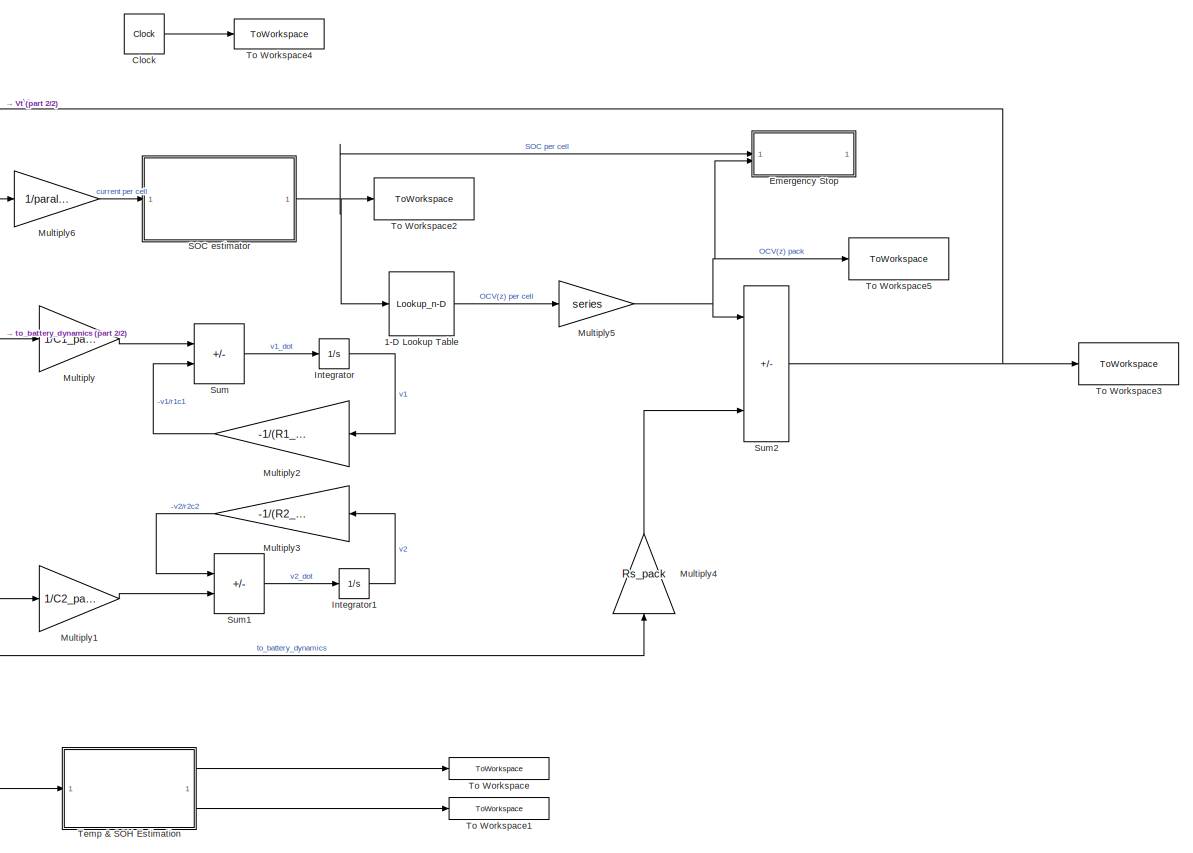
[diagram: root canvas - part 1/2, right side, full height]
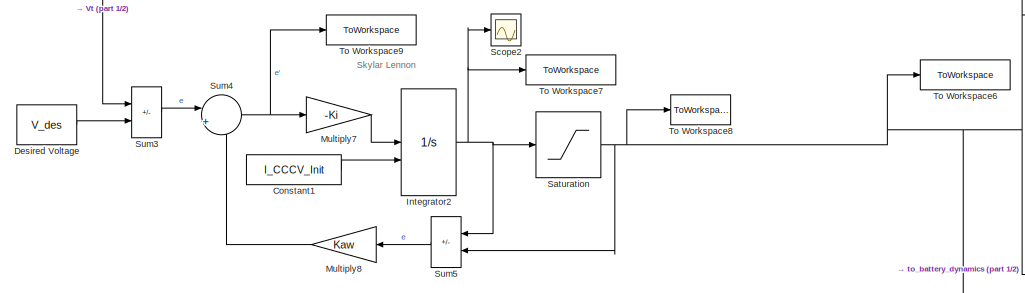
[diagram: root canvas - part 2/2, middle left region]
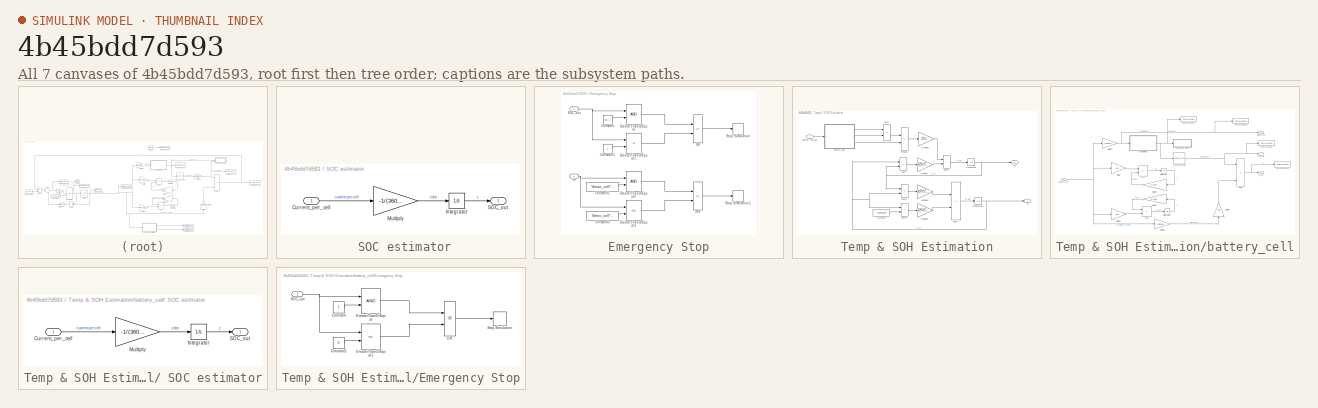
[diagram: thumbnail index - all 7 canvases of the model, root first then tree order]
MODEL slx_4b45bdd7d593
KIND model
CONFIG AbsTol = auto
CONFIG EnableMultiTasking = off
CONFIG FixedStep = auto
CONFIG MaxStep = auto
CONFIG MinStep = auto
CONFIG RelTol = 1e-3
CONFIG SampleTimeConstraint = Unconstrained
CONFIG SolverName = VariableStepAuto
CONFIG StartTime = 0.0
CONFIG StopTime = total_time
BLOCK [SubSystem]  SOC estimator
BLOCK [Inport]  SOC estimator/Current_per_cell
BLOCK [Integrator]  SOC estimator/Integrator
  InitialCondition = SOC_i
BLOCK [Gain]  SOC estimator/Multiply
  Gain = -1/(3600*Qcell)
BLOCK [Outport]  SOC estimator/SOC_out
  VectorParamsAs1DForOutWhenUnconnected = off
BLOCK [Lookup_n-D] 1-D Lookup Table
  BreakpointsForDimension1 = SOC
  InputPortMap = u0
  InternalRulePriority = Speed
  NumberOfTableDimensions = 1
  RndMeth = Simplest
  Table = Vocv
BLOCK [Clock] Clock
BLOCK [Constant] Constant1
  Value = I_CCCV_Init
BLOCK [Constant] Desired Voltage
  Value = V_des
BLOCK [SubSystem] Emergency Stop
BLOCK [Constant] Emergency Stop/Constant
  Value = SOC_f
BLOCK [Constant] Emergency Stop/Constant1
  Value = 0
BLOCK [Constant] Emergency Stop/Constant2
  Value = Vtmax_cell*series
BLOCK [Constant] Emergency Stop/Constant3
  Value = Vtmin_cell*series
BLOCK [RelationalOperator] Emergency Stop/GreaterThanOrEqual
  InputSameDT = off
  OutDataTypeStr = boolean
  RndMeth = Simplest
BLOCK [RelationalOperator] Emergency Stop/GreaterThanOrEqual1
  InputSameDT = off
  Operator = <
  OutDataTypeStr = boolean
  RndMeth = Simplest
BLOCK [RelationalOperator] Emergency Stop/GreaterThanOrEqual2
  InputSameDT = off
  OutDataTypeStr = boolean
  RndMeth = Simplest
BLOCK [RelationalOperator] Emergency Stop/GreaterThanOrEqual3
  InputSameDT = off
  Operator = <=
  OutDataTypeStr = boolean
  RndMeth = Simplest
BLOCK [Logic] Emergency Stop/OR
  AllPortsSameDT = off
  IconShape = distinctive
  Operator = OR
  OutDataTypeStr = boolean
BLOCK [Logic] Emergency Stop/OR1
  AllPortsSameDT = off
  IconShape = distinctive
  Operator = OR
  OutDataTypeStr = boolean
BLOCK [Inport] Emergency Stop/SOC_out
BLOCK [Stop] Emergency Stop/Stop Simulation
BLOCK [Stop] Emergency Stop/Stop Simulation1
BLOCK [Inport] Emergency Stop/Vt
  Port = 2
BLOCK [Integrator] Integrator
BLOCK [Integrator] Integrator1
BLOCK [Integrator] Integrator2
  InitialConditionSource = external
BLOCK [Gain] Multiply
  Gain = 1/C1_pack
BLOCK [Gain] Multiply1
  Gain = 1/C2_pack
BLOCK [Gain] Multiply2
  Gain = -1/(R1_pack*C1_pack)
  NameLocation = top
BLOCK [Gain] Multiply3
  Gain = -1/(R2_pack*C2_pack)
  NameLocation = top
BLOCK [Gain] Multiply4
  Gain = Rs_pack
  NameLocation = right
BLOCK [Gain] Multiply5
  Gain = series
BLOCK [Gain] Multiply6
  Gain = 1/parallel
BLOCK [Gain] Multiply7
  Gain = -Ki
BLOCK [Gain] Multiply8
  Gain = Kaw
  NameLocation = top
BLOCK [Saturate] Saturation
  LowerLimit = I_CCCV_Init
  UpperLimit = 0
BLOCK [Scope] Scope2
  Floating = off
  NumInputPorts = 1
  ScopeSpecificationString = Simulink.scopes.TimeScopeBlockCfg('CurrentConfiguration', extmgr.ConfigurationSet(extmgr.Configuration('Core','General UI',true),extmgr.Configuration('Core','Source UI',true),extmgr.Configuration('Sources','WiredSimulink',true),extmgr.Configuration('Visuals','Time Domain',true,'SerializedDisplays',{struct('MinYLimReal','-5.62188','MaxYLimReal','0.59688','YLabelReal','','MinYLimMag','0.00000','MaxY...<+1403ch>
BLOCK [Sum] Sum
  IconShape = rectangular
  Inputs = +-
BLOCK [Sum] Sum1
  IconShape = rectangular
  Inputs = -+
BLOCK [Sum] Sum2
  IconShape = rectangular
  Inputs = +---
BLOCK [Sum] Sum3
  IconShape = rectangular
  Inputs = -+
BLOCK [Sum] Sum4
  Inputs = |++
BLOCK [Sum] Sum5
  IconShape = rectangular
  Inputs = +-
  NameLocation = top
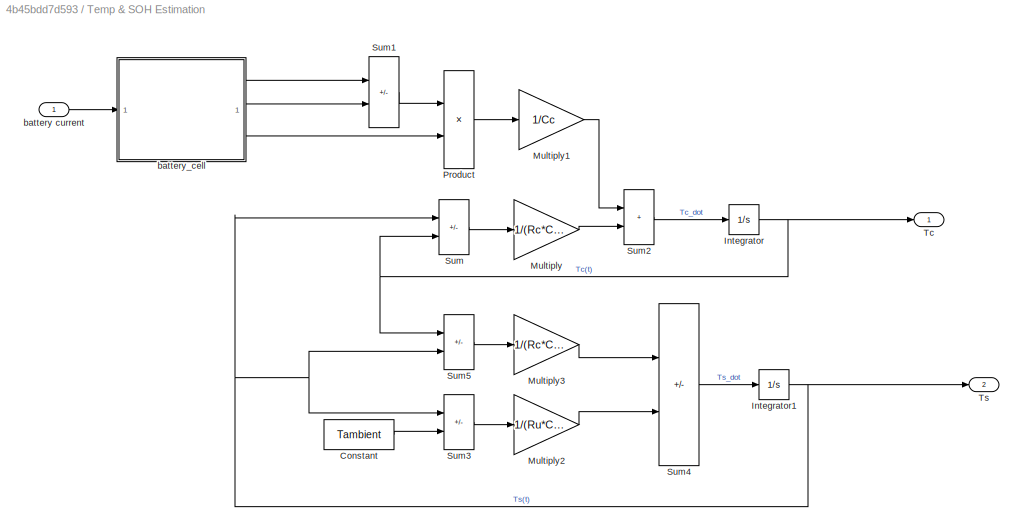
BLOCK [SubSystem] Temp & SOH Estimation
BLOCK [Constant] Temp & SOH Estimation/Constant
  Value = Tambient
BLOCK [Integrator] Temp & SOH Estimation/Integrator
  InitialCondition = TcInit
BLOCK [Integrator] Temp & SOH Estimation/Integrator1
  InitialCondition = TsInit
BLOCK [Gain] Temp & SOH Estimation/Multiply
  Gain = 1/(Rc*Cc)
BLOCK [Gain] Temp & SOH Estimation/Multiply1
  Gain = 1/Cc
BLOCK [Gain] Temp & SOH Estimation/Multiply2
  Gain = 1/(Ru*Cs)
BLOCK [Gain] Temp & SOH Estimation/Multiply3
  Gain = 1/(Rc*Cs)
BLOCK [Product] Temp & SOH Estimation/Product
BLOCK [Sum] Temp & SOH Estimation/Sum
  IconShape = rectangular
  Inputs = +-
BLOCK [Sum] Temp & SOH Estimation/Sum1
  IconShape = rectangular
  Inputs = -+
BLOCK [Sum] Temp & SOH Estimation/Sum2
  IconShape = rectangular
BLOCK [Sum] Temp & SOH Estimation/Sum3
  IconShape = rectangular
  Inputs = -+
BLOCK [Sum] Temp & SOH Estimation/Sum4
  IconShape = rectangular
  Inputs = -+
BLOCK [Sum] Temp & SOH Estimation/Sum5
  IconShape = rectangular
  Inputs = -+
BLOCK [Outport] Temp & SOH Estimation/Tc
BLOCK [Outport] Temp & SOH Estimation/Ts
  Port = 2
BLOCK [Inport] Temp & SOH Estimation/battery current
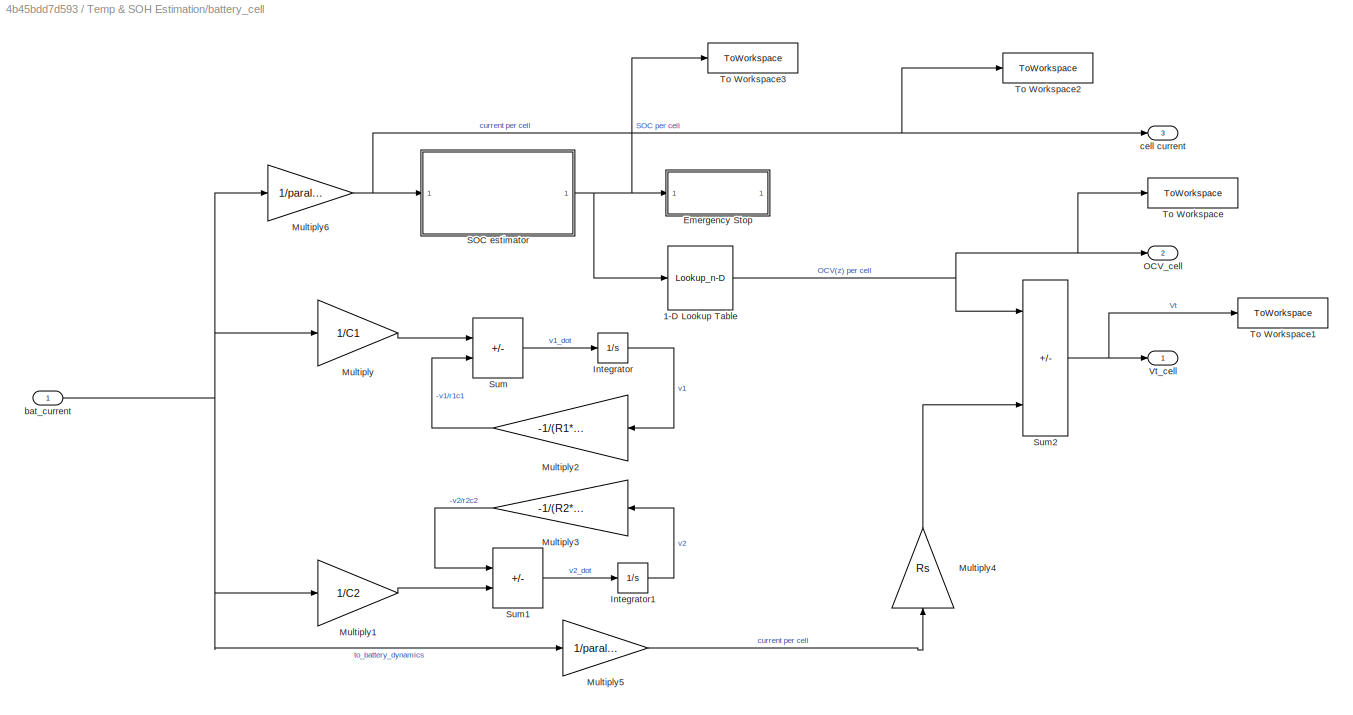
BLOCK [SubSystem] Temp & SOH Estimation/battery_cell
BLOCK [SubSystem] Temp & SOH Estimation/battery_cell/ SOC estimator
BLOCK [Inport] Temp & SOH Estimation/battery_cell/ SOC estimator/Current_per_cell
BLOCK [Integrator] Temp & SOH Estimation/battery_cell/ SOC estimator/Integrator
  InitialCondition = SOC_i
BLOCK [Gain] Temp & SOH Estimation/battery_cell/ SOC estimator/Multiply
  Gain = -1/(3600*Qcell)
BLOCK [Outport] Temp & SOH Estimation/battery_cell/ SOC estimator/SOC_out
  VectorParamsAs1DForOutWhenUnconnected = off
BLOCK [Lookup_n-D] Temp & SOH Estimation/battery_cell/1-D Lookup Table
  BreakpointsForDimension1 = SOC
  InputPortMap = u0
  InternalRulePriority = Speed
  NumberOfTableDimensions = 1
  RndMeth = Simplest
  Table = Vocv
BLOCK [SubSystem] Temp & SOH Estimation/battery_cell/Emergency Stop
BLOCK [Constant] Temp & SOH Estimation/battery_cell/Emergency Stop/Constant
BLOCK [Constant] Temp & SOH Estimation/battery_cell/Emergency Stop/Constant1
  Value = 0
BLOCK [RelationalOperator] Temp & SOH Estimation/battery_cell/Emergency Stop/GreaterThanOrEqual
  InputSameDT = off
  OutDataTypeStr = boolean
  RndMeth = Simplest
BLOCK [RelationalOperator] Temp & SOH Estimation/battery_cell/Emergency Stop/GreaterThanOrEqual1
  InputSameDT = off
  Operator = <=
  OutDataTypeStr = boolean
  RndMeth = Simplest
BLOCK [Logic] Temp & SOH Estimation/battery_cell/Emergency Stop/OR
  AllPortsSameDT = off
  IconShape = distinctive
  Operator = OR
  OutDataTypeStr = boolean
BLOCK [Inport] Temp & SOH Estimation/battery_cell/Emergency Stop/SOC_out
BLOCK [Stop] Temp & SOH Estimation/battery_cell/Emergency Stop/Stop Simulation
BLOCK [Integrator] Temp & SOH Estimation/battery_cell/Integrator
BLOCK [Integrator] Temp & SOH Estimation/battery_cell/Integrator1
BLOCK [Gain] Temp & SOH Estimation/battery_cell/Multiply
  Gain = 1/C1
BLOCK [Gain] Temp & SOH Estimation/battery_cell/Multiply1
  Gain = 1/C2
BLOCK [Gain] Temp & SOH Estimation/battery_cell/Multiply2
  Gain = -1/(R1*C1)
  NameLocation = top
BLOCK [Gain] Temp & SOH Estimation/battery_cell/Multiply3
  Gain = -1/(R2*C2)
  NameLocation = top
BLOCK [Gain] Temp & SOH Estimation/battery_cell/Multiply4
  Gain = Rs
  NameLocation = right
BLOCK [Gain] Temp & SOH Estimation/battery_cell/Multiply5
  Gain = 1/parallel
BLOCK [Gain] Temp & SOH Estimation/battery_cell/Multiply6
  Gain = 1/parallel
BLOCK [Outport] Temp & SOH Estimation/battery_cell/OCV_cell
  Port = 2
BLOCK [Sum] Temp & SOH Estimation/battery_cell/Sum
  IconShape = rectangular
  Inputs = +-
BLOCK [Sum] Temp & SOH Estimation/battery_cell/Sum1
  IconShape = rectangular
  Inputs = -+
BLOCK [Sum] Temp & SOH Estimation/battery_cell/Sum2
  IconShape = rectangular
  Inputs = +---
BLOCK [ToWorkspace] Temp & SOH Estimation/battery_cell/To Workspace
  FixptAsFi = on
  MaxDataPoints = inf
  SampleTime = -1
  VariableName = OCVOutCell
BLOCK [ToWorkspace] Temp & SOH Estimation/battery_cell/To Workspace1
  FixptAsFi = on
  MaxDataPoints = inf
  SampleTime = -1
  VariableName = VtOutCell
BLOCK [ToWorkspace] Temp & SOH Estimation/battery_cell/To Workspace2
  FixptAsFi = on
  MaxDataPoints = inf
  SampleTime = -1
  VariableName = currentOutCell
BLOCK [ToWorkspace] Temp & SOH Estimation/battery_cell/To Workspace3
  FixptAsFi = on
  MaxDataPoints = inf
  SampleTime = -1
  VariableName = SOCOutCell
BLOCK [Outport] Temp & SOH Estimation/battery_cell/Vt_cell
BLOCK [Inport] Temp & SOH Estimation/battery_cell/bat_current
BLOCK [Outport] Temp & SOH Estimation/battery_cell/cell current
  Port = 3
BLOCK [ToWorkspace] To Workspace
  FixptAsFi = on
  MaxDataPoints = inf
  SampleTime = -1
  VariableName = TcOut
BLOCK [ToWorkspace] To Workspace1
  FixptAsFi = on
  MaxDataPoints = inf
  SampleTime = -1
  VariableName = TsOut
BLOCK [ToWorkspace] To Workspace2
  FixptAsFi = on
  MaxDataPoints = inf
  SampleTime = -1
  VariableName = SOCOut
BLOCK [ToWorkspace] To Workspace3
  FixptAsFi = on
  MaxDataPoints = inf
  SampleTime = -1
  VariableName = VtOut
BLOCK [ToWorkspace] To Workspace4
  FixptAsFi = on
  MaxDataPoints = inf
  SampleTime = -1
  VariableName = simTime
BLOCK [ToWorkspace] To Workspace5
  FixptAsFi = on
  MaxDataPoints = inf
  SampleTime = -1
  VariableName = OCVOut
BLOCK [ToWorkspace] To Workspace6
  FixptAsFi = on
  MaxDataPoints = inf
  SampleTime = -1
  VariableName = currentOut
BLOCK [ToWorkspace] To Workspace7
  FixptAsFi = on
  MaxDataPoints = inf
  SampleTime = -1
  VariableName = I_out_PI
BLOCK [ToWorkspace] To Workspace8
  MaxDataPoints = inf
  SampleTime = -1
  VariableName = I_out
BLOCK [ToWorkspace] To Workspace9
  FixptAsFi = on
  MaxDataPoints = inf
  SampleTime = -1
  VariableName = e_out_PI
ANNOTATION (root): Skylar Lennon
LINE  SOC estimator/Current_per_cell:1 ->  SOC estimator/Multiply:1
LINE  SOC estimator/Integrator:1 ->  SOC estimator/SOC_out:1
LINE  SOC estimator/Multiply:1 ->  SOC estimator/Integrator:1
NET  SOC estimator:1 -> 1-D Lookup Table:1, Emergency Stop:1, To Workspace2:1
LINE 1-D Lookup Table:1 -> Multiply5:1
LINE Clock:1 -> To Workspace4:1
LINE Constant1:1 -> Integrator2:2
LINE Desired Voltage:1 -> Sum3:2
LINE Emergency Stop/Constant1:1 -> Emergency Stop/GreaterThanOrEqual1:2
LINE Emergency Stop/Constant2:1 -> Emergency Stop/GreaterThanOrEqual2:2
LINE Emergency Stop/Constant3:1 -> Emergency Stop/GreaterThanOrEqual3:2
LINE Emergency Stop/Constant:1 -> Emergency Stop/GreaterThanOrEqual:2
LINE Emergency Stop/GreaterThanOrEqual1:1 -> Emergency Stop/OR:2
LINE Emergency Stop/GreaterThanOrEqual2:1 -> Emergency Stop/OR1:1
LINE Emergency Stop/GreaterThanOrEqual3:1 -> Emergency Stop/OR1:2
LINE Emergency Stop/GreaterThanOrEqual:1 -> Emergency Stop/OR:1
LINE Emergency Stop/OR1:1 -> Emergency Stop/Stop Simulation1:1
LINE Emergency Stop/OR:1 -> Emergency Stop/Stop Simulation:1
NET Emergency Stop/SOC_out:1 -> Emergency Stop/GreaterThanOrEqual1:1, Emergency Stop/GreaterThanOrEqual:1
NET Emergency Stop/Vt:1 -> Emergency Stop/GreaterThanOrEqual2:1, Emergency Stop/GreaterThanOrEqual3:1
LINE Integrator1:1 -> Multiply3:1
NET Integrator2:1 -> Saturation:1, Scope2:1, Sum5:1, To Workspace7:1
LINE Integrator:1 -> Multiply2:1
LINE Multiply1:1 -> Sum1:2
LINE Multiply2:1 -> Sum:2
LINE Multiply3:1 -> Sum1:1
LINE Multiply4:1 -> Sum2:4
NET Multiply5:1 -> Emergency Stop:2, Sum2:1, To Workspace5:1
LINE Multiply6:1 ->  SOC estimator:1
LINE Multiply7:1 -> Integrator2:1
LINE Multiply8:1 -> Sum4:2
LINE Multiply:1 -> Sum:1
NET Saturation:1 -> Multiply1:1, Multiply4:1, Multiply6:1, Multiply:1, Sum5:2, Temp & SOH Estimation:1, To Workspace6:1, To Workspace8:1
LINE Sum1:1 -> Integrator1:1
NET Sum2:1 -> Sum3:1, To Workspace3:1
LINE Sum3:1 -> Sum4:1
NET Sum4:1 -> Multiply7:1, To Workspace9:1
LINE Sum5:1 -> Multiply8:1
LINE Sum:1 -> Integrator:1
LINE Temp & SOH Estimation/Constant:1 -> Temp & SOH Estimation/Sum3:2
NET Temp & SOH Estimation/Integrator1:1 -> Temp & SOH Estimation/Sum3:1, Temp & SOH Estimation/Sum5:2, Temp & SOH Estimation/Sum:1, Temp & SOH Estimation/Ts:1
NET Temp & SOH Estimation/Integrator:1 -> Temp & SOH Estimation/Sum5:1, Temp & SOH Estimation/Sum:2, Temp & SOH Estimation/Tc:1
LINE Temp & SOH Estimation/Multiply1:1 -> Temp & SOH Estimation/Sum2:1
LINE Temp & SOH Estimation/Multiply2:1 -> Temp & SOH Estimation/Sum4:2
LINE Temp & SOH Estimation/Multiply3:1 -> Temp & SOH Estimation/Sum4:1
LINE Temp & SOH Estimation/Multiply:1 -> Temp & SOH Estimation/Sum2:2
LINE Temp & SOH Estimation/Product:1 -> Temp & SOH Estimation/Multiply1:1
LINE Temp & SOH Estimation/Sum1:1 -> Temp & SOH Estimation/Product:1
LINE Temp & SOH Estimation/Sum2:1 -> Temp & SOH Estimation/Integrator:1
LINE Temp & SOH Estimation/Sum3:1 -> Temp & SOH Estimation/Multiply2:1
LINE Temp & SOH Estimation/Sum4:1 -> Temp & SOH Estimation/Integrator1:1
LINE Temp & SOH Estimation/Sum5:1 -> Temp & SOH Estimation/Multiply3:1
LINE Temp & SOH Estimation/Sum:1 -> Temp & SOH Estimation/Multiply:1
LINE Temp & SOH Estimation/battery current:1 -> Temp & SOH Estimation/battery_cell:1
LINE Temp & SOH Estimation/battery_cell/ SOC estimator/Current_per_cell:1 -> Temp & SOH Estimation/battery_cell/ SOC estimator/Multiply:1
LINE Temp & SOH Estimation/battery_cell/ SOC estimator/Integrator:1 -> Temp & SOH Estimation/battery_cell/ SOC estimator/SOC_out:1
LINE Temp & SOH Estimation/battery_cell/ SOC estimator/Multiply:1 -> Temp & SOH Estimation/battery_cell/ SOC estimator/Integrator:1
NET Temp & SOH Estimation/battery_cell/ SOC estimator:1 -> Temp & SOH Estimation/battery_cell/1-D Lookup Table:1, Temp & SOH Estimation/battery_cell/Emergency Stop:1, Temp & SOH Estimation/battery_cell/To Workspace3:1
NET Temp & SOH Estimation/battery_cell/1-D Lookup Table:1 -> Temp & SOH Estimation/battery_cell/OCV_cell:1, Temp & SOH Estimation/battery_cell/Sum2:1, Temp & SOH Estimation/battery_cell/To Workspace:1
LINE Temp & SOH Estimation/battery_cell/Emergency Stop/Constant1:1 -> Temp & SOH Estimation/battery_cell/Emergency Stop/GreaterThanOrEqual1:2
LINE Temp & SOH Estimation/battery_cell/Emergency Stop/Constant:1 -> Temp & SOH Estimation/battery_cell/Emergency Stop/GreaterThanOrEqual:2
LINE Temp & SOH Estimation/battery_cell/Emergency Stop/GreaterThanOrEqual1:1 -> Temp & SOH Estimation/battery_cell/Emergency Stop/OR:2
LINE Temp & SOH Estimation/battery_cell/Emergency Stop/GreaterThanOrEqual:1 -> Temp & SOH Estimation/battery_cell/Emergency Stop/OR:1
LINE Temp & SOH Estimation/battery_cell/Emergency Stop/OR:1 -> Temp & SOH Estimation/battery_cell/Emergency Stop/Stop Simulation:1
NET Temp & SOH Estimation/battery_cell/Emergency Stop/SOC_out:1 -> Temp & SOH Estimation/battery_cell/Emergency Stop/GreaterThanOrEqual1:1, Temp & SOH Estimation/battery_cell/Emergency Stop/GreaterThanOrEqual:1
LINE Temp & SOH Estimation/battery_cell/Integrator1:1 -> Temp & SOH Estimation/battery_cell/Multiply3:1
LINE Temp & SOH Estimation/battery_cell/Integrator:1 -> Temp & SOH Estimation/battery_cell/Multiply2:1
LINE Temp & SOH Estimation/battery_cell/Multiply1:1 -> Temp & SOH Estimation/battery_cell/Sum1:2
LINE Temp & SOH Estimation/battery_cell/Multiply2:1 -> Temp & SOH Estimation/battery_cell/Sum:2
LINE Temp & SOH Estimation/battery_cell/Multiply3:1 -> Temp & SOH Estimation/battery_cell/Sum1:1
LINE Temp & SOH Estimation/battery_cell/Multiply4:1 -> Temp & SOH Estimation/battery_cell/Sum2:4
LINE Temp & SOH Estimation/battery_cell/Multiply5:1 -> Temp & SOH Estimation/battery_cell/Multiply4:1
NET Temp & SOH Estimation/battery_cell/Multiply6:1 -> Temp & SOH Estimation/battery_cell/ SOC estimator:1, Temp & SOH Estimation/battery_cell/To Workspace2:1, Temp & SOH Estimation/battery_cell/cell current:1
LINE Temp & SOH Estimation/battery_cell/Multiply:1 -> Temp & SOH Estimation/battery_cell/Sum:1
LINE Temp & SOH Estimation/battery_cell/Sum1:1 -> Temp & SOH Estimation/battery_cell/Integrator1:1
NET Temp & SOH Estimation/battery_cell/Sum2:1 -> Temp & SOH Estimation/battery_cell/To Workspace1:1, Temp & SOH Estimation/battery_cell/Vt_cell:1
LINE Temp & SOH Estimation/battery_cell/Sum:1 -> Temp & SOH Estimation/battery_cell/Integrator:1
NET Temp & SOH Estimation/battery_cell/bat_current:1 -> Temp & SOH Estimation/battery_cell/Multiply1:1, Temp & SOH Estimation/battery_cell/Multiply5:1, Temp & SOH Estimation/battery_cell/Multiply6:1, Temp & SOH Estimation/battery_cell/Multiply:1
LINE Temp & SOH Estimation/battery_cell:1 -> Temp & SOH Estimation/Sum1:1
LINE Temp & SOH Estimation/battery_cell:2 -> Temp & SOH Estimation/Sum1:2
LINE Temp & SOH Estimation/battery_cell:3 -> Temp & SOH Estimation/Product:2
LINE Temp & SOH Estimation:1 -> To Workspace:1
LINE Temp & SOH Estimation:2 -> To Workspace1:1
note: NET lines group one-source signal fan-out (src -> all destinations, sorted); 1:1 wires keep LINE
